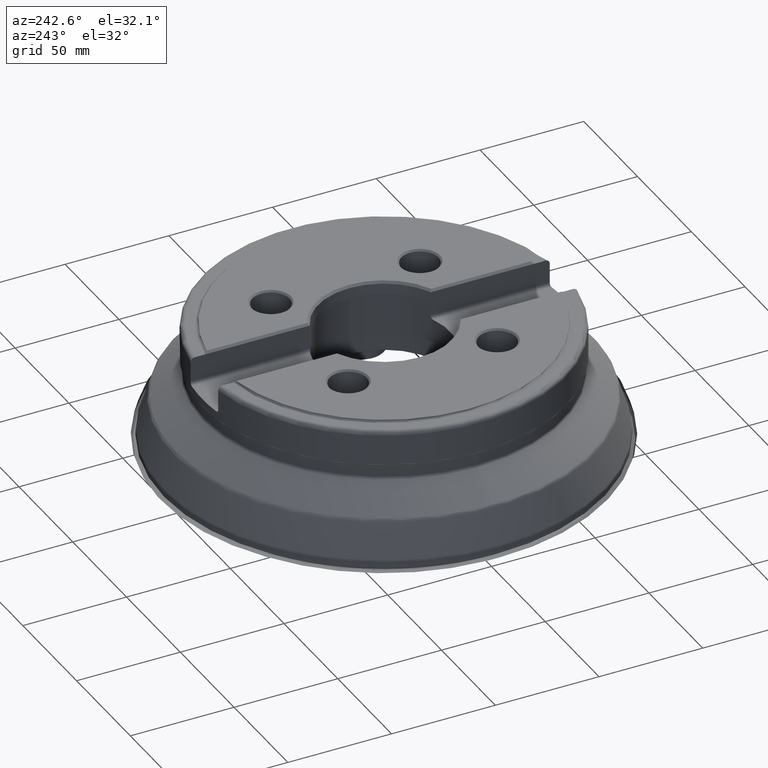
[diagram: clean part render]
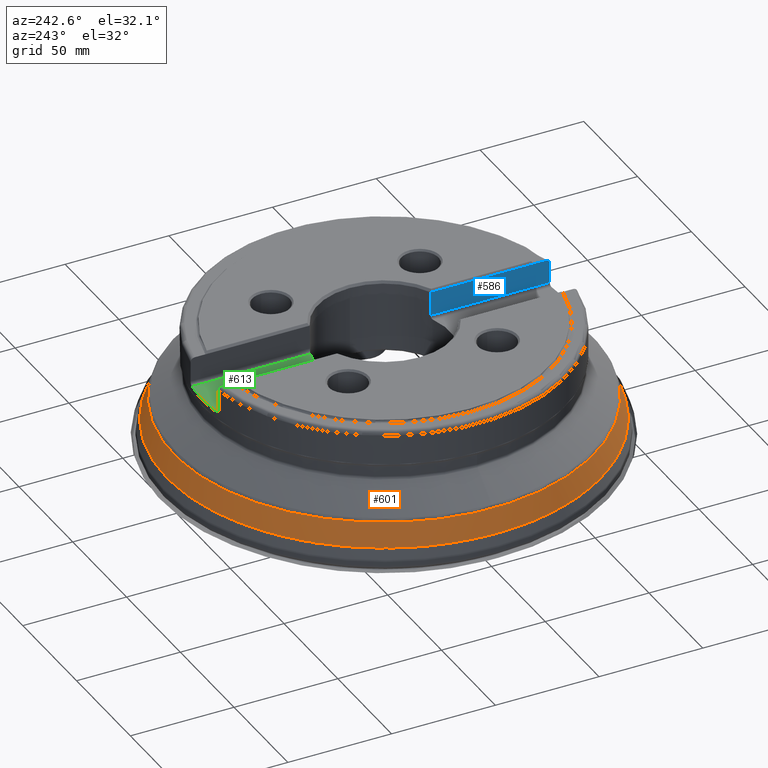
[diagram: same view with three faces highlighted in distinct colors, each labeled with its STEP entity id]
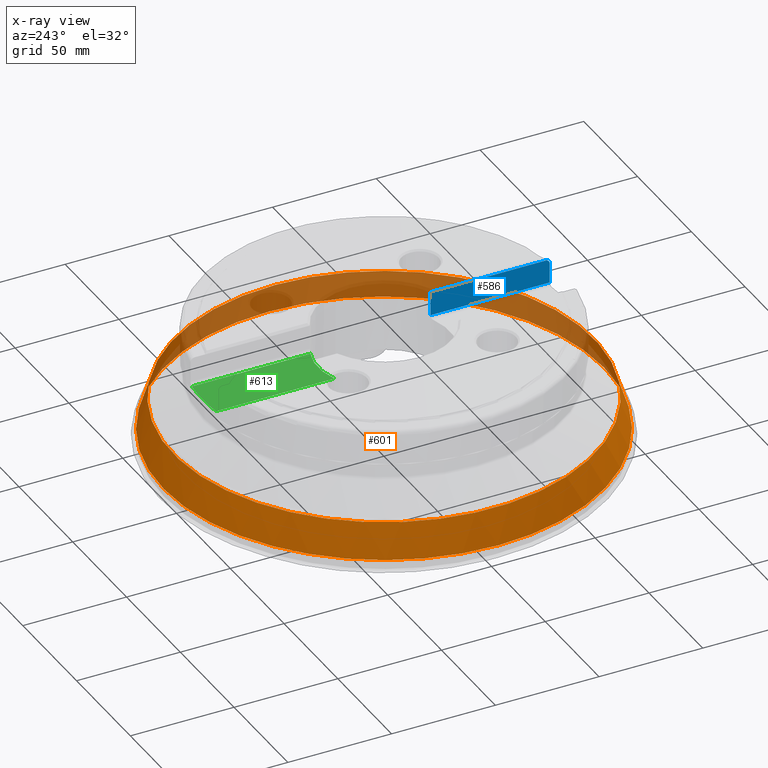
[diagram: x-ray of the same camera — body ghosted, the three highlighted faces saturated]
A machine part, auxiliary view with three faces highlighted in distinct colors.
The next image is the same camera in x-ray (body ghosted, the three faces saturated) — at least one of them is partly hidden behind the body in this view.
Their STEP definitions:

[orange] entity #601 — the highlighted conical surface has half-angle 17 deg.
#207=CONICAL_SURFACE('',#2649,101.693371926327,17.);
#601=ADVANCED_FACE('',(#804,#805),#207,.T.);
#804=FACE_BOUND('',#962,.T.);
#805=FACE_BOUND('',#963,.T.);
#962=EDGE_LOOP('',(#1263));
#963=EDGE_LOOP('',(#1264));
#1263=ORIENTED_EDGE('',*,*,#2087,.T.);
#1264=ORIENTED_EDGE('',*,*,#2088,.T.);
#1859=VERTEX_POINT('',#4202);
#1860=VERTEX_POINT('',#4204);
#2087=EDGE_CURVE('',#1859,#1859,#2362,.T.);
#2088=EDGE_CURVE('',#1860,#1860,#2363,.T.);
#2362=CIRCLE('',#2647,106.168914267889);
#2363=CIRCLE('',#2648,101.26599486574);
#2647=AXIS2_PLACEMENT_3D('',#4201,#3032,#3033);
#2648=AXIS2_PLACEMENT_3D('',#4203,#3034,#3035);
#2649=AXIS2_PLACEMENT_3D('',#4205,#3036,#3037);
#3032=DIRECTION('',(1.17145536458252E-15,0.,1.));
#3033=DIRECTION('',(1.,0.,-1.17642806401107E-15));
#3034=DIRECTION('',(-1.17145536458252E-15,0.,-1.));
#3035=DIRECTION('',(1.,0.,-1.16486483466456E-15));
#3036=DIRECTION('',(-1.17145536458252E-15,0.,-1.));
#3037=DIRECTION('',(-1.,0.,1.0388992123113E-15));
#4201=CARTESIAN_POINT('',(1.08927667052437E-14,0.,9.29849060798454));
#4202=CARTESIAN_POINT('',(106.168914267889,0.,9.29849060798442));
#4203=CARTESIAN_POINT('',(2.96790763041369E-14,0.,25.3352173727198));
#4204=CARTESIAN_POINT('',(101.26599486574,0.,25.3352173727196));
#4205=CARTESIAN_POINT('',(2.80415136364481E-14,0.,23.9373299950198));

[blue] entity #586 — the highlighted planar face has unit normal (1, 0, -0).
#237=PLANE('',#2610);
#270=FACE_OUTER_BOUND('',#942,.T.);
#366=LINE('',#3881,#474);
#367=LINE('',#3897,#475);
#368=LINE('',#3899,#476);
#369=LINE('',#3901,#477);
#370=LINE('',#3926,#478);
#474=VECTOR('',#2938,1.);
#475=VECTOR('',#2939,1.);
#476=VECTOR('',#2940,1.);
#477=VECTOR('',#2941,1.);
#478=VECTOR('',#2942,1.);
#586=ADVANCED_FACE('',(#270),#237,.F.);
#942=EDGE_LOOP('',(#1186,#1187,#1188,#1189,#1190,#1191,#1192,#1193));
#1186=ORIENTED_EDGE('',*,*,#2027,.T.);
#1187=ORIENTED_EDGE('',*,*,#2028,.T.);
#1188=ORIENTED_EDGE('',*,*,#2029,.T.);
#1189=ORIENTED_EDGE('',*,*,#2030,.T.);
#1190=ORIENTED_EDGE('',*,*,#2031,.T.);
#1191=ORIENTED_EDGE('',*,*,#2032,.F.);
#1192=ORIENTED_EDGE('',*,*,#2033,.T.);
#1193=ORIENTED_EDGE('',*,*,#2034,.F.);
#1812=VERTEX_POINT('',#3882);
#1813=VERTEX_POINT('',#3883);
#1814=VERTEX_POINT('',#3888);
#1815=VERTEX_POINT('',#3896);
#1816=VERTEX_POINT('',#3898);
#1817=VERTEX_POINT('',#3900);
#1818=VERTEX_POINT('',#3902);
#1819=VERTEX_POINT('',#3925);
#2027=EDGE_CURVE('',#1812,#1813,#366,.T.);
#2028=EDGE_CURVE('',#1813,#1814,#2539,.T.);
#2029=EDGE_CURVE('',#1814,#1815,#2540,.T.);
#2030=EDGE_CURVE('',#1815,#1816,#367,.T.);
#2031=EDGE_CURVE('',#1816,#1817,#368,.T.);
#2032=EDGE_CURVE('',#1818,#1817,#369,.T.);
#2033=EDGE_CURVE('',#1818,#1819,#2541,.T.);
#2034=EDGE_CURVE('',#1812,#1819,#370,.T.);
#2539=B_SPLINE_CURVE_WITH_KNOTS('',3,(#3884,#3885,#3886,#3887),
 .UNSPECIFIED.,.F.,.F.,(4,4),(0.,1.),.UNSPECIFIED.);
#2540=B_SPLINE_CURVE_WITH_KNOTS('',3,(#3889,#3890,#3891,#3892,#3893,#3894,
#3895),.UNSPECIFIED.,.F.,.F.,(4,3,4),(0.,0.40758821560848,1.),
 .UNSPECIFIED.);
#2541=B_SPLINE_CURVE_WITH_KNOTS('',3,(#3903,#3904,#3905,#3906,#3907,#3908,
#3909,#3910,#3911,#3912,#3913,#3914,#3915,#3916,#3917,#3918,#3919,#3920,
#3921,#3922,#3923,#3924),.UNSPECIFIED.,.F.,.F.,(4,3,3,3,3,3,3,4),(0.,0.00729134689671593,
0.136543426401583,0.349537752715322,0.562434629509499,0.776808481437518,
0.993513858640564,1.),.UNSPECIFIED.);
#2610=AXIS2_PLACEMENT_3D('',#3927,#2943,#2944);
#2938=DIRECTION('',(0.,1.,0.));
#2939=DIRECTION('',(-1.17145536458252E-15,0.,-1.));
#2940=DIRECTION('',(0.,-1.,0.));
#2941=DIRECTION('',(-1.17145536458252E-15,0.,-1.));
#2942=DIRECTION('',(0.,-1.,0.));
#2943=DIRECTION('',(1.,0.,-1.17145536458252E-15));
#2944=DIRECTION('',(-1.17093834628434E-15,0.,-1.));
#3881=CARTESIAN_POINT('',(12.8500000000001,-29.2051625814246,62.4999999999999));
#3882=CARTESIAN_POINT('',(12.8500000000001,-79.4677764883352,62.4999999999998));
#3883=CARTESIAN_POINT('',(12.8500000000001,-29.2051625814246,62.4999999999999));
#3884=CARTESIAN_POINT('',(12.8500000000001,-29.2051625814246,62.4999999999999));
#3885=CARTESIAN_POINT('',(12.8500000000001,-29.1953695359227,62.491036247517));
#3886=CARTESIAN_POINT('',(12.8500000000001,-29.1855761262107,62.482072892923));
#3887=CARTESIAN_POINT('',(12.8500000000001,-29.1757823513335,62.4731099373595));
#3888=CARTESIAN_POINT('',(12.8500000000001,-29.1757823513335,62.4731099373595));
#3889=CARTESIAN_POINT('',(12.8500000000001,-29.1757823513335,62.4731099373595));
#3890=CARTESIAN_POINT('',(12.8500000000001,-29.1564495271103,61.7974493819599));
#3891=CARTESIAN_POINT('',(12.8500000000001,-29.1371135835259,61.121788915808));
#3892=CARTESIAN_POINT('',(12.8500000000001,-29.1177745019039,60.4461285394818));
#3893=CARTESIAN_POINT('',(12.8500000000001,-29.0896659859827,59.4640855026688));
#3894=CARTESIAN_POINT('',(12.8500000000001,-29.0615508408737,58.4820426555768));
#3895=CARTESIAN_POINT('',(12.8500000000001,-29.0334290086445,57.5));
#3896=CARTESIAN_POINT('',(12.8500000000001,-29.0334290086445,57.5));
#3897=CARTESIAN_POINT('',(12.85,-29.0334290086445,-1.50532014348854E-14));
#3898=CARTESIAN_POINT('',(12.8500000000001,-29.0334290086445,50.876));
#3899=CARTESIAN_POINT('',(12.8500000000001,109.,50.876));
#3900=CARTESIAN_POINT('',(12.8500000000001,-86.5512998169293,50.876));
#3901=CARTESIAN_POINT('',(12.85,-86.5512998169293,7.99999999999998));
#3902=CARTESIAN_POINT('',(12.8500000000001,-86.5512998169293,60.4999999999998));
#3903=CARTESIAN_POINT('',(12.8500000000001,-86.5512998169293,60.4999999999998));
#3904=CARTESIAN_POINT('',(12.8500000000001,-86.5512998169293,60.5077382655015));
#3905=CARTESIAN_POINT('',(12.8500000000001,-86.5512544124981,60.5154766641951));
#3906=CARTESIAN_POINT('',(12.8500000000001,-86.5511636085221,60.5232143969129));
#3907=CARTESIAN_POINT('',(12.8500000000001,-86.5495610112625,60.6597774617538));
#3908=CARTESIAN_POINT('',(12.8500000000001,-86.533653666709,60.7968971624573));
#3909=CARTESIAN_POINT('',(12.8500000000001,-86.5039694055788,60.9302046402591));
#3910=CARTESIAN_POINT('',(12.8500000000001,-86.4554935137334,61.1479024582288));
#3911=CARTESIAN_POINT('',(12.8500000000001,-86.368531034921,61.3601720707538));
#3912=CARTESIAN_POINT('',(12.8500000000001,-86.2505696318511,61.5494532357565));
#3913=CARTESIAN_POINT('',(12.8500000000001,-86.1326394821481,61.7386842515277));
#3914=CARTESIAN_POINT('',(12.8500000000001,-85.9805319672041,61.9101481140717));
#3915=CARTESIAN_POINT('',(12.8500000000001,-85.8069564377528,62.0501032251412));
#3916=CARTESIAN_POINT('',(12.8500000000001,-85.6321754261969,62.1910303244993));
#3917=CARTESIAN_POINT('',(12.8500000000001,-85.4308925382154,62.3038697162346));
#3918=CARTESIAN_POINT('',(12.8500000000001,-85.2195952337297,62.3797795209445));
#3919=CARTESIAN_POINT('',(12.8500000000001,-85.0060343916324,62.4565025149114));
#3920=CARTESIAN_POINT('',(12.8500000000001,-84.7764155305625,62.4976061019583));
#3921=CARTESIAN_POINT('',(12.8500000000001,-84.549502753891,62.4998958320299));
#3922=CARTESIAN_POINT('',(12.8500000000001,-84.5426207719375,62.4999652766916));
#3923=CARTESIAN_POINT('',(12.8500000000001,-84.5357383520253,62.4999999999998));
#3924=CARTESIAN_POINT('',(12.8500000000001,-84.5288560197049,62.4999999999998));
#3925=CARTESIAN_POINT('',(12.8500000000001,-84.5288560197049,62.4999999999998));
#3926=CARTESIAN_POINT('',(12.8500000000001,-79.5,62.4999999999998));
#3927=CARTESIAN_POINT('',(12.8500000000001,109.,49.276));

[green] entity #613 — the highlighted planar face has unit normal (-0, 0, -1).
#244=PLANE('',#2672);
#287=FACE_OUTER_BOUND('',#979,.T.);
#388=LINE('',#4289,#496);
#389=LINE('',#4311,#497);
#496=VECTOR('',#3074,1.);
#497=VECTOR('',#3079,1.);
#613=ADVANCED_FACE('',(#287),#244,.F.);
#979=EDGE_LOOP('',(#1301,#1302,#1303,#1304));
#1301=ORIENTED_EDGE('',*,*,#2104,.T.);
#1302=ORIENTED_EDGE('',*,*,#2109,.T.);
#1303=ORIENTED_EDGE('',*,*,#2106,.T.);
#1304=ORIENTED_EDGE('',*,*,#2077,.F.);
#1850=VERTEX_POINT('',#4148);
#1851=VERTEX_POINT('',#4150);
#1873=VERTEX_POINT('',#4288);
#1874=VERTEX_POINT('',#4312);
#2077=EDGE_CURVE('',#1850,#1851,#2354,.T.);
#2104=EDGE_CURVE('',#1850,#1873,#388,.T.);
#2106=EDGE_CURVE('',#1874,#1851,#389,.T.);
#2109=EDGE_CURVE('',#1873,#1874,#2374,.T.);
#2354=CIRCLE('',#2635,87.5);
#2374=CIRCLE('',#2671,31.75);
#2635=AXIS2_PLACEMENT_3D('',#4149,#3008,#3009);
#2671=AXIS2_PLACEMENT_3D('',#4347,#3084,#3085);
#2672=AXIS2_PLACEMENT_3D('',#4348,#3086,#3087);
#3008=DIRECTION('',(-1.17145536458252E-15,0.,-1.));
#3009=DIRECTION('',(-1.,0.,1.18952466924124E-15));
#3074=DIRECTION('',(0.,-1.,0.));
#3079=DIRECTION('',(0.,1.,0.));
#3084=DIRECTION('',(-1.17145536458252E-15,0.,-1.));
#3085=DIRECTION('',(-1.,0.,1.09273919746571E-15));
#3086=DIRECTION('',(-1.17145536458252E-15,0.,-1.));
#3087=DIRECTION('',(-1.,0.,1.17267306976032E-15));
#4148=CARTESIAN_POINT('',(-11.2499999999999,86.773771959043,49.276));
#4149=CARTESIAN_POINT('',(5.77246345451685E-14,0.,49.276));
#4150=CARTESIAN_POINT('',(11.2500000000001,86.773771959043,49.276));
#4288=CARTESIAN_POINT('',(-11.2499999999999,29.690065678607,49.276));
#4289=CARTESIAN_POINT('',(-11.2499999999999,109.,49.276));
#4311=CARTESIAN_POINT('',(11.2500000000001,109.,49.276));
#4312=CARTESIAN_POINT('',(11.2500000000001,29.690065678607,49.276));
#4347=CARTESIAN_POINT('',(5.77246345451685E-14,0.,49.276));
#4348=CARTESIAN_POINT('',(-12.8499999999999,109.,49.276));